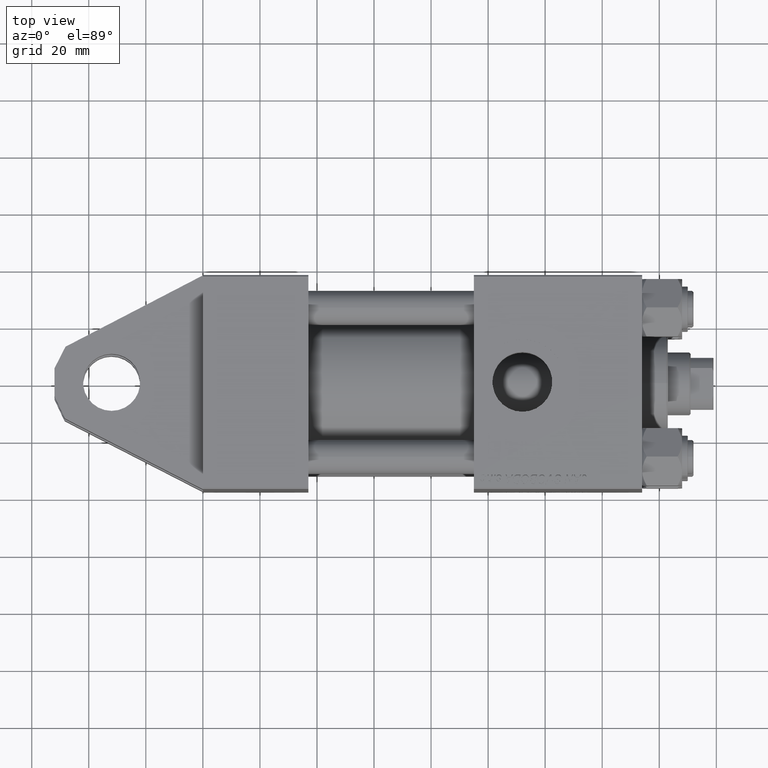
[diagram: clean part render]
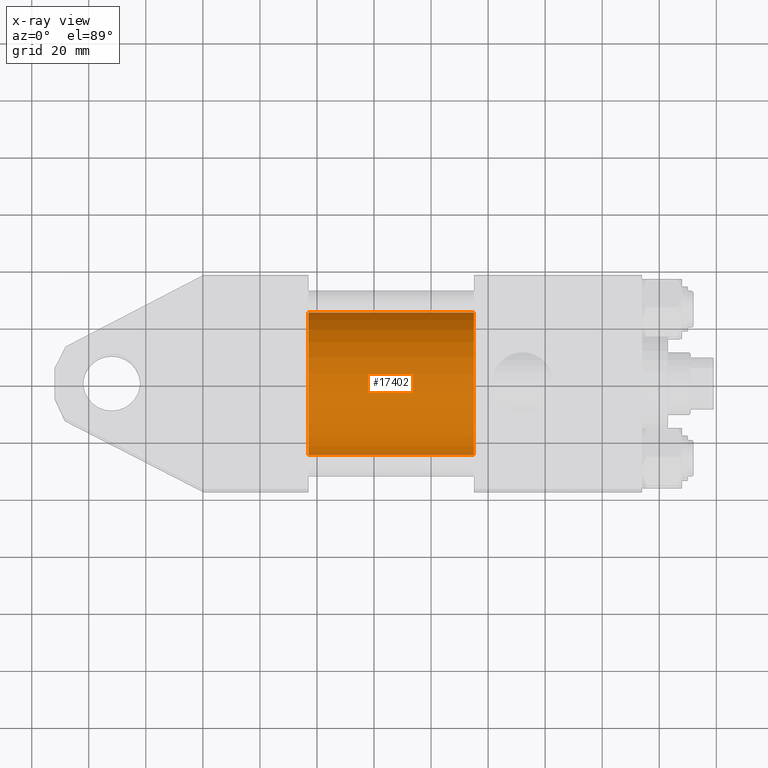
[diagram: x-ray — body ghosted, one internal face saturated and labeled with its STEP entity id]
A machine part, top view, then the same camera in x-ray: the body is ghosted and one INTERNAL B-rep face — a face not visible from any outside direction — is saturated and labeled: STEP entity #17402.
In plain terms, the highlighted cylindrical surface (partial cylindrical patch) has radius 25 mm, axis along (-1, -0, 0).
Its self-contained STEP definition (entity closure, byte-faithful):
#1477 = CARTESIAN_POINT ( 'NONE',  ( 95.00000000000000000, -3.469446951953614189E-15, 25.00000000000000000 ) ) ;
#1730 = AXIS2_PLACEMENT_3D ( 'NONE', #45600, #38060, #50001 ) ;
#1959 = VECTOR ( 'NONE', #49035, 1000.000000000000000 ) ;
#2516 = LINE ( 'NONE', #1477, #1959 ) ;
#2732 = ORIENTED_EDGE ( 'NONE', *, *, #19187, .T. ) ;
#6503 = CIRCLE ( 'NONE', #15621, 25.00000000000000000 ) ;
#7547 = VERTEX_POINT ( 'NONE', #48445 ) ;
#9518 = ORIENTED_EDGE ( 'NONE', *, *, #30444, .F. ) ;
#10921 = DIRECTION ( 'NONE',  ( -1.000000000000000000, -0.000000000000000000, -0.000000000000000000 ) ) ;
#14450 = EDGE_LOOP ( 'NONE', ( #48695, #2732, #9518, #47558 ) ) ;
#14610 = DIRECTION ( 'NONE',  ( 1.000000000000000000, 0.000000000000000000, 0.000000000000000000 ) ) ;
#14815 = CARTESIAN_POINT ( 'NONE',  ( 95.00000000000000000, -3.469446951953614189E-15, 0.000000000000000000 ) ) ;
#15621 = AXIS2_PLACEMENT_3D ( 'NONE', #39013, #14610, #31232 ) ;
#17402 = ADVANCED_FACE ( 'NONE', ( #46001 ), #45752, .F. ) ;
#17848 = CARTESIAN_POINT ( 'NONE',  ( 95.00000000000000000, -4.078299540852317872E-16, -25.00000000000000000 ) ) ;
#17905 = VERTEX_POINT ( 'NONE', #46701 ) ;
#19187 = EDGE_CURVE ( 'NONE', #17905, #49260, #25403, .T. ) ;
#19412 = VERTEX_POINT ( 'NONE', #47677 ) ;
#25403 = LINE ( 'NONE', #17848, #50501 ) ;
#26655 = CIRCLE ( 'NONE', #1730, 25.00000000000000000 ) ;
#30444 = EDGE_CURVE ( 'NONE', #19412, #49260, #6503, .T. ) ;
#31232 = DIRECTION ( 'NONE',  ( 0.000000000000000000, 0.000000000000000000, -1.000000000000000000 ) ) ;
#32185 = AXIS2_PLACEMENT_3D ( 'NONE', #14815, #10921, #37438 ) ;
#37438 = DIRECTION ( 'NONE',  ( 0.000000000000000000, 0.000000000000000000, 1.000000000000000000 ) ) ;
#38060 = DIRECTION ( 'NONE',  ( 1.000000000000000000, 0.000000000000000000, 0.000000000000000000 ) ) ;
#39013 = CARTESIAN_POINT ( 'NONE',  ( 37.00000000000000000, -3.469446951953614189E-15, 0.000000000000000000 ) ) ;
#40723 = EDGE_CURVE ( 'NONE', #7547, #17905, #26655, .T. ) ;
#45600 = CARTESIAN_POINT ( 'NONE',  ( 95.00000000000000000, -3.469446951953614189E-15, 0.000000000000000000 ) ) ;
#45752 = CYLINDRICAL_SURFACE ( 'NONE', #32185, 25.00000000000000000 ) ;
#46001 = FACE_OUTER_BOUND ( 'NONE', #14450, .T. ) ;
#46701 = CARTESIAN_POINT ( 'NONE',  ( 95.00000000000000000, -4.078299540852317872E-16, -25.00000000000000000 ) ) ;
#47558 = ORIENTED_EDGE ( 'NONE', *, *, #51281, .F. ) ;
#47677 = CARTESIAN_POINT ( 'NONE',  ( 37.00000000000000000, -3.469446951953614189E-15, 25.00000000000000000 ) ) ;
#48283 = CARTESIAN_POINT ( 'NONE',  ( 37.00000000000000000, -4.078299540852317872E-16, -25.00000000000000000 ) ) ;
#48445 = CARTESIAN_POINT ( 'NONE',  ( 95.00000000000000000, -3.469446951953614189E-15, 25.00000000000000000 ) ) ;
#48695 = ORIENTED_EDGE ( 'NONE', *, *, #40723, .T. ) ;
#49027 = DIRECTION ( 'NONE',  ( -1.000000000000000000, -0.000000000000000000, -0.000000000000000000 ) ) ;
#49035 = DIRECTION ( 'NONE',  ( -1.000000000000000000, -0.000000000000000000, -0.000000000000000000 ) ) ;
#49260 = VERTEX_POINT ( 'NONE', #48283 ) ;
#50001 = DIRECTION ( 'NONE',  ( 0.000000000000000000, 0.000000000000000000, -1.000000000000000000 ) ) ;
#50501 = VECTOR ( 'NONE', #49027, 1000.000000000000000 ) ;
#51281 = EDGE_CURVE ( 'NONE', #7547, #19412, #2516, .T. ) ;